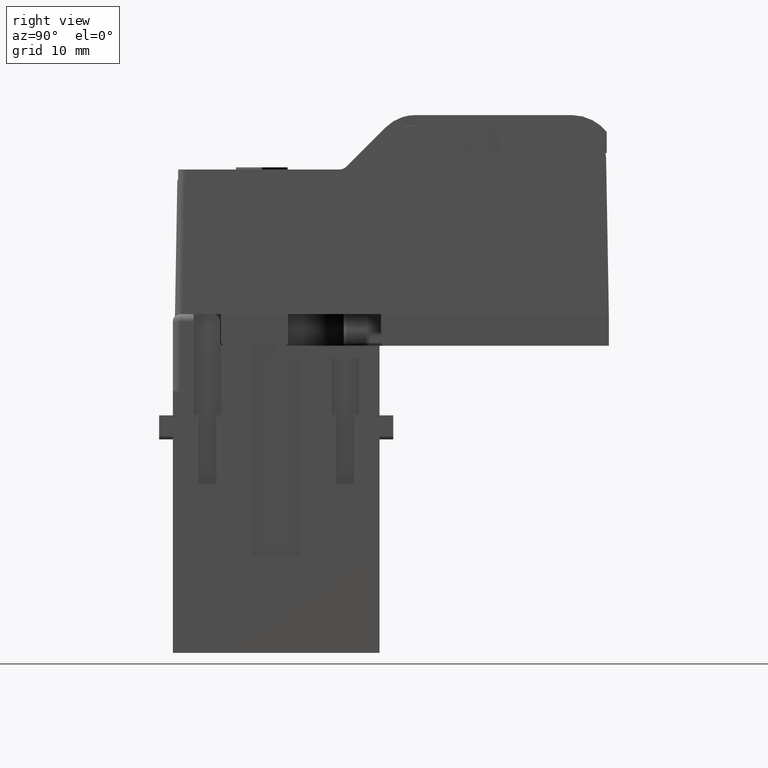
[diagram: clean part render]
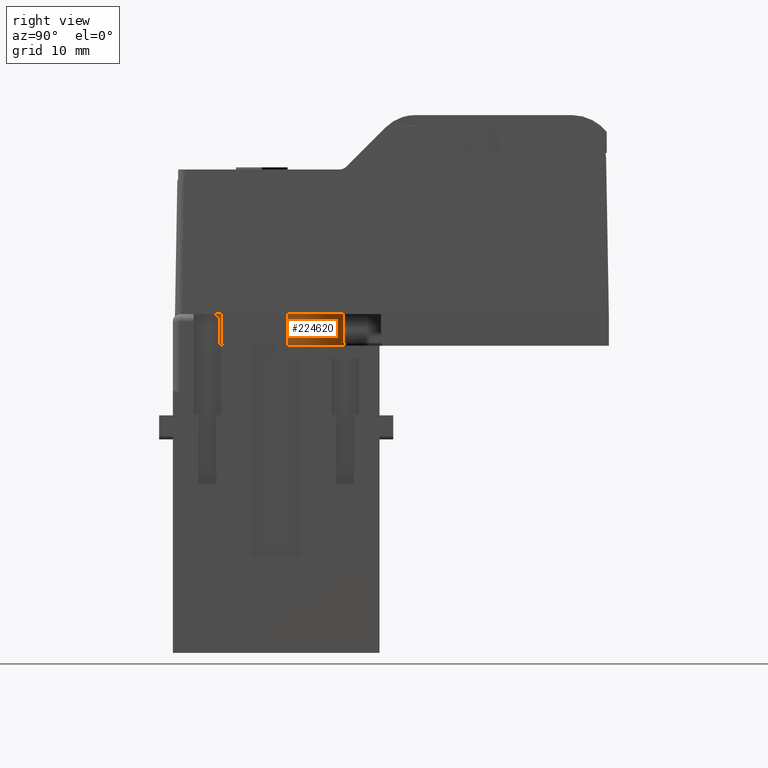
[diagram: same view with one face highlighted and labeled with its STEP entity id]
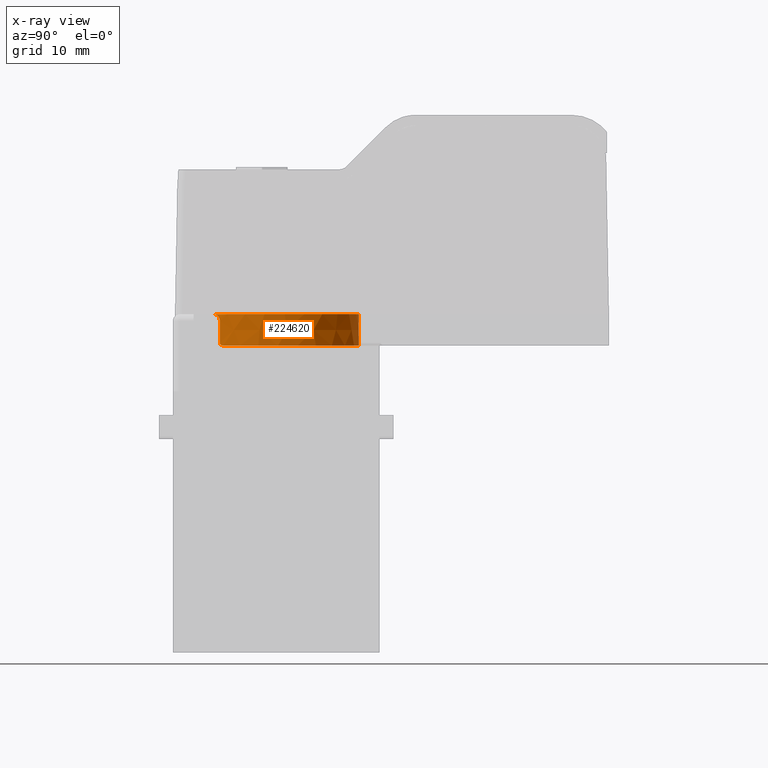
[diagram: x-ray of the same camera — body ghosted, the highlighted face saturated]
A machine part, right view. The second image highlights one B-rep face of the part: STEP entity #224620.
The next image is the same camera in x-ray: the body ghosted, the highlighted face saturated — about 0% of this face is hidden behind the body in this view.
In plain terms, the highlighted conical surface has half-angle 1 deg.
Its self-contained STEP definition (entity closure, byte-faithful):
#222530=CARTESIAN_POINT('',(55.5411914523025,91.9571830000001,
-26.1999999999934));
#222540=DIRECTION('',(1.,-4.90807124289031E-32,4.42079756411822E-16));
#222550=DIRECTION('',(-4.42079756411822E-16,-1.11022302462516E-16,1.));
#222560=AXIS2_PLACEMENT_3D('',#222530,#222540,#222550);
#222570=CYLINDRICAL_SURFACE('',#222560,1.);
#222580=CARTESIAN_POINT('',(41.3477350000005,92.9571830000002,
-16.999999999995));
#222590=DIRECTION('',(0.,-1.,-1.13690221213854E-16));
#222600=DIRECTION('',(1.,5.60519385729927E-45,-5.91645678915706E-31));
#222610=AXIS2_PLACEMENT_3D('',#222580,#222590,#222600);
#222620=CONICAL_SURFACE('',#222610,12.,0.0174532925199433);
#222630=CARTESIAN_POINT('',(33.6431908862954,92.9571830000001,
-26.1999999999935));
#222640=CARTESIAN_POINT('',(33.5171546391474,92.9571830000001,
-26.0944508884632));
#222650=CARTESIAN_POINT('',(33.3939920383722,92.9407539313874,
-25.9872270187438));
#222660=CARTESIAN_POINT('',(33.2756491555754,92.9047713088025,
-25.8805060297509));
#222670=CARTESIAN_POINT('',(33.1569557332568,92.8686821032865,
-25.7734689260618));
#222680=CARTESIAN_POINT('',(33.0426855926888,92.8123907719029,
-25.6664246530764));
#222690=CARTESIAN_POINT('',(32.9405131966234,92.7322579198354,
-25.5681306553957));
#222700=CARTESIAN_POINT('',(32.8379980066631,92.6518562177308,
-25.4695068760557));
#222710=CARTESIAN_POINT('',(32.7456762077353,92.5453503313714,
-25.377731415129));
#222720=CARTESIAN_POINT('',(32.6775616014506,92.4131427727067,
-25.3099996147831));
#222730=CARTESIAN_POINT('',(32.6084393238002,92.2789793667066,
-25.2412658062119));
#222740=CARTESIAN_POINT('',(32.5664968427384,92.1218863056987,
-25.1999999999927));
#222750=CARTESIAN_POINT('',(32.562564185633,91.9571830000002,
-25.1999999999927));
#222760=B_SPLINE_CURVE_WITH_KNOTS('',3,(#222630,#222640,#222650,#222660,
#222670,#222680,#222690,#222700,#222710,#222720,#222730,#222740,#222750)
,.UNSPECIFIED.,.F.,.F.,(4,3,3,3,4),(0.,0.490841378695767,
0.982153690890786,1.47334973900886,1.96389205208649),.UNSPECIFIED.);
#222770=SURFACE_CURVE('',#222760,(#222570,#222620),.CURVE_3D.);
#222780=CARTESIAN_POINT('',(33.6431908862627,92.9571830000001,
-26.1999999999661));
#222790=VERTEX_POINT('',#222780);
#222800=CARTESIAN_POINT('',(32.5625641856335,91.9571830000002,
-25.1999999999931));
#222810=VERTEX_POINT('',#222800);
#222820=EDGE_CURVE('',#222790,#222810,#222770,.T.);
#223170=CARTESIAN_POINT('',(44.1977350000005,91.9571830000001,
-29.4413103911484));
#223180=DIRECTION('',(5.91645678915803E-31,-1.11022302462519E-16,1.));
#223190=DIRECTION('',(-5.60519385729927E-45,1.,1.11022302462519E-16));
#223200=AXIS2_PLACEMENT_3D('',#223170,#223180,#223190);
#223210=CYLINDRICAL_SURFACE('',#223200,1.);
#223220=CARTESIAN_POINT('',(43.1977350000005,91.9571830000001,
-5.12579576402323));
#223230=CARTESIAN_POINT('',(43.1977350000005,92.0890962811146,
-5.12812609701533));
#223240=CARTESIAN_POINT('',(43.2239503970781,92.2203446708241,
-5.13444639075197));
#223250=CARTESIAN_POINT('',(43.2749326215229,92.3424566303935,
-5.14489364909814));
#223260=CARTESIAN_POINT('',(43.3262024544786,92.4652574661199,
-5.15539984407268));
#223270=CARTESIAN_POINT('',(43.4012009381276,92.5758470359365,
-5.16986416622654));
#223280=CARTESIAN_POINT('',(43.4944699475402,92.6681107501888,
-5.18845255174746));
#223290=CARTESIAN_POINT('',(43.588438032523,92.7610660050617,
-5.2071802620697));
#223300=CARTESIAN_POINT('',(43.6992375672041,92.8337355676913,
-5.22981429843383));
#223310=CARTESIAN_POINT('',(43.8193739171043,92.8828410853371,
-5.25597402173387));
#223320=CARTESIAN_POINT('',(43.9404091487472,92.9323140192837,
-5.28232947678113));
#223330=CARTESIAN_POINT('',(44.0693173936153,92.9571830000005,
-5.31195199521371));
#223340=CARTESIAN_POINT('',(44.1977350000035,92.9571830000001,
-5.34334953770594));
#223350=B_SPLINE_CURVE_WITH_KNOTS('',3,(#223220,#223230,#223240,#223250,
#223260,#223270,#223280,#223290,#223300,#223310,#223320,#223330,#223340)
,.UNSPECIFIED.,.F.,.F.,(4,3,3,3,4),(0.,0.396026103560013,
0.793793603685412,1.19157719453419,1.58934710492143),.UNSPECIFIED.);
#223360=SURFACE_CURVE('',#223350,(#223210,#222620),.CURVE_3D.);
#223370=CARTESIAN_POINT('',(43.1977350000005,91.9571830000001,
-5.12579576402323));
#223380=VERTEX_POINT('',#223370);
#223390=CARTESIAN_POINT('',(44.1977350001208,92.9571830000001,
-5.34334953773462));
#223400=VERTEX_POINT('',#223390);
#223410=EDGE_CURVE('',#223380,#223400,#223360,.T.);
#223420=ORIENTED_EDGE('',*,*,#223410,.T.);
#223430=CARTESIAN_POINT('',(43.1977350000005,85.757183,-1.99999999999469
));
#223440=DIRECTION('',(-1.,-7.07217818713932E-45,5.91645678915803E-31));
#223450=DIRECTION('',(-5.91645678915803E-31,1.11022302462516E-16,-1.));
#223460=AXIS2_PLACEMENT_3D('',#223430,#223440,#223450);
#223470=PLANE('',#223460);
#223480=CARTESIAN_POINT('',(43.1977350000005,88.8571829999999,
-5.07103524827281));
#223490=CARTESIAN_POINT('',(43.1977350000005,88.9863496688447,
-5.07331681291308));
#223500=CARTESIAN_POINT('',(43.1977350000005,89.1155163374192,
-5.07559839292199));
#223510=CARTESIAN_POINT('',(43.1977350000005,89.2446830057217,
-5.07787998832599));
#223520=CARTESIAN_POINT('',(43.1977350000005,89.3738496740234,
-5.08016158372998));
#223530=CARTESIAN_POINT('',(43.1977350000005,89.5030163420553,
-5.0824431945291));
#223540=CARTESIAN_POINT('',(43.1977350000005,89.6321830098142,
-5.08472482074986));
#223550=CARTESIAN_POINT('',(43.1977350000005,89.8905163453322,
-5.08928807319138));
#223560=CARTESIAN_POINT('',(43.1977350000005,90.1488496797623,
-5.09385138731945));
#223570=CARTESIAN_POINT('',(43.1977350000005,90.4071830131007,
-5.09841476334717));
#223580=CARTESIAN_POINT('',(43.1977350000005,90.665516346439,
-5.1029781393749));
#223590=CARTESIAN_POINT('',(43.1977350000005,90.9238496786857,
-5.10754157730229));
#223600=CARTESIAN_POINT('',(43.1977350000005,91.1821830098369,
-5.11210507734343));
#223610=CARTESIAN_POINT('',(43.1977350000005,91.3113496754124,
-5.114386827364));
#223620=CARTESIAN_POINT('',(43.1977350000005,91.4405163407149,
-5.11666859291304));
#223630=CARTESIAN_POINT('',(43.1977350000005,91.5696830057415,
-5.11895037401737));
#223640=CARTESIAN_POINT('',(43.1977350000005,91.6988496707689,
-5.12123215512171));
#223650=CARTESIAN_POINT('',(43.1977350000005,91.8280163355224,
-5.12351395178136));
#223660=CARTESIAN_POINT('',(43.1977350000005,91.9571830000002,
-5.12579576402323));
#223670=B_SPLINE_CURVE_WITH_KNOTS('',3,(#223480,#223490,#223500,#223510,
#223520,#223530,#223540,#223550,#223560,#223570,#223580,#223590,#223600,
#223610,#223620,#223630,#223640,#223650,#223660),.UNSPECIFIED.,.F.,.F.,(
4,3,3,3,3,3,4),(0.,0.387560453220878,0.775120906444084,1.55024181289829,
2.32536271936285,2.71292317259902,3.10048362583804),.UNSPECIFIED.);
#223680=SURFACE_CURVE('',#223670,(#223470,#222620),.CURVE_3D.);
#223690=CARTESIAN_POINT('',(43.1977350000005,88.857183,-5.07103524827281
));
#223700=VERTEX_POINT('',#223690);
#223710=EDGE_CURVE('',#223700,#223380,#223680,.T.);
#223720=ORIENTED_EDGE('',*,*,#223710,.T.);
#223730=CARTESIAN_POINT('',(42.6977350000005,88.857183,-4.55868960884607
));
#223740=DIRECTION('',(-7.88860905221012E-31,2.62869779714346E-15,-1.));
#223750=DIRECTION('',(0.,1.,2.62869779714346E-15));
#223760=AXIS2_PLACEMENT_3D('',#223730,#223740,#223750);
#223770=CYLINDRICAL_SURFACE('',#223760,0.5);
#223780=CARTESIAN_POINT('',(43.1977350000005,88.8571830000001,
-5.07103524827282));
#223790=CARTESIAN_POINT('',(43.1977350000005,88.7916419802495,
-5.0698775496615));
#223800=CARTESIAN_POINT('',(43.1847952476386,88.7264328245887,
-5.06669900792895));
#223810=CARTESIAN_POINT('',(43.1596137910649,88.6656941429746,
-5.06180483963988));
#223820=CARTESIAN_POINT('',(43.1342922490451,88.6046175696549,
-5.05688344489763));
#223830=CARTESIAN_POINT('',(43.0971869964825,88.5494321415941,
-5.05035423785053));
#223840=CARTESIAN_POINT('',(43.050919270769,88.5032608745519,
-5.0429497203976));
#223850=CARTESIAN_POINT('',(43.0042997921022,88.4567385878887,
-5.03548890968966));
#223860=CARTESIAN_POINT('',(42.9490449384446,88.4200339761469,
-5.02726055679588));
#223870=CARTESIAN_POINT('',(42.8887558625276,88.3951104623185,
-5.01906738282146));
#223880=CARTESIAN_POINT('',(42.827998557216,88.3699933823819,
-5.01081057733782));
#223890=CARTESIAN_POINT('',(42.7627324635754,88.357183,-5.00268586484208
));
#223900=CARTESIAN_POINT('',(42.6977350000005,88.357183,-4.99537646646061
));
#223910=B_SPLINE_CURVE_WITH_KNOTS('',3,(#223780,#223790,#223800,#223810,
#223820,#223830,#223840,#223850,#223860,#223870,#223880,#223890,#223900)
,.UNSPECIFIED.,.F.,.F.,(4,3,3,3,4),(0.,0.196751594011008,
0.394377656367602,0.59200281718069,0.789433472170161),.UNSPECIFIED.);
#223920=SURFACE_CURVE('',#223910,(#223770,#222620),.CURVE_3D.);
#223930=CARTESIAN_POINT('',(42.6977349997238,88.357183,-4.9953764664295)
);
#223940=VERTEX_POINT('',#223930);
#223950=EDGE_CURVE('',#223700,#223940,#223920,.T.);
#223960=ORIENTED_EDGE('',*,*,#223950,.F.);
#223970=CARTESIAN_POINT('',(41.3477350000005,88.357183,-16.999999999995)
);
#223980=DIRECTION('',(5.60519385729927E-45,-1.,-1.11022302462516E-16));
#223990=DIRECTION('',(1.,5.67087972281449E-45,-5.91645678915706E-31));
#224000=AXIS2_PLACEMENT_3D('',#223970,#223980,#223990);
#224010=CIRCLE('',#224000,12.0802932986698);
#224020=CARTESIAN_POINT('',(32.0394867124917,88.357183,-24.6999999999935
));
#224030=VERTEX_POINT('',#224020);
#224040=EDGE_CURVE('',#223940,#224030,#224010,.T.);
#224050=ORIENTED_EDGE('',*,*,#224040,.F.);
#224060=CARTESIAN_POINT('',(27.154278547698,88.857183,-24.6999999999935)
);
#224070=DIRECTION('',(-1.,6.16074488056511E-31,-4.42079756411822E-16));
#224080=DIRECTION('',(4.42079756411822E-16,1.11022302462516E-16,-1.));
#224090=AXIS2_PLACEMENT_3D('',#224060,#224070,#224080);
#224100=CYLINDRICAL_SURFACE('',#224090,0.5);
#224110=CARTESIAN_POINT('',(32.0394867124917,88.357183,-24.6999999999935
));
#224120=CARTESIAN_POINT('',(32.0881920431406,88.357183,-24.7588780922799
));
#224130=CARTESIAN_POINT('',(32.1380830150501,88.3675631979921,
-24.8177330682549));
#224140=CARTESIAN_POINT('',(32.1868372586967,88.3883980058762,
-24.8738983303028));
#224150=CARTESIAN_POINT('',(32.2355262955467,88.4092049480613,
-24.9299884736217));
#224160=CARTESIAN_POINT('',(32.2826529815909,88.4400361170925,
-24.9829197875514));
#224170=CARTESIAN_POINT('',(32.3261548508973,88.4821519141487,
-25.0306836624947));
#224180=CARTESIAN_POINT('',(32.3696098061372,88.5242222919313,
-25.0783960270628));
#224190=CARTESIAN_POINT('',(32.4088923026246,88.5771687685018,
-25.120322790195));
#224200=CARTESIAN_POINT('',(32.4385450258913,88.6414631802044,
-25.1510709027875));
#224210=CARTESIAN_POINT('',(32.4683304060774,88.7060452248003,
-25.1819565727254));
#224220=CARTESIAN_POINT('',(32.4868517928976,88.7799493777495,
-25.1999999999934));
#224230=CARTESIAN_POINT('',(32.4886887732413,88.857183,-25.1999999999934
));
#224240=B_SPLINE_CURVE_WITH_KNOTS('',3,(#224110,#224120,#224130,#224140,
#224150,#224160,#224170,#224180,#224190,#224200,#224210,#224220,#224230)
,.UNSPECIFIED.,.F.,.F.,(4,3,3,3,4),(0.,0.230781078689629,
0.461416754560196,0.692146114662934,0.922059122858208),.UNSPECIFIED.);
#224250=SURFACE_CURVE('',#224240,(#224100,#222620),.CURVE_3D.);
#224260=CARTESIAN_POINT('',(32.4886887732414,88.857183,-25.1999999999935
));
#224270=VERTEX_POINT('',#224260);
#224280=EDGE_CURVE('',#224030,#224270,#224250,.T.);
#224290=ORIENTED_EDGE('',*,*,#224280,.F.);
#224300=CARTESIAN_POINT('',(32.0707473423617,88.3571830000001,
-25.1999999999935));
#224310=DIRECTION('',(-4.42079756411822E-16,-1.03244494932799E-14,1.));
#224320=DIRECTION('',(-1.,4.03650364090779E-30,-4.42079756411822E-16));
#224330=AXIS2_PLACEMENT_3D('',#224300,#224310,#224320);
#224340=PLANE('',#224330);
#224350=CARTESIAN_POINT('',(32.5625641856342,91.9571830000001,
-25.1999999999935));
#224360=CARTESIAN_POINT('',(32.5563959104631,91.6988499483464,
-25.1999999999935));
#224370=CARTESIAN_POINT('',(32.5502306581945,91.4405168252668,
-25.1999999999935));
#224380=CARTESIAN_POINT('',(32.5440684098279,91.1821836315171,
-25.1999999999935));
#224390=CARTESIAN_POINT('',(32.5379061614613,90.9238504377675,
-25.1999999999935));
#224400=CARTESIAN_POINT('',(32.531746916997,90.6655171733482,
-25.1999999999935));
#224410=CARTESIAN_POINT('',(32.5255906576117,90.407183839012,
-25.1999999999935));
#224420=CARTESIAN_POINT('',(32.5194343982265,90.1488505046759,
-25.1999999999935));
#224430=CARTESIAN_POINT('',(32.5132811239206,89.8905171004233,
-25.1999999999935));
#224440=CARTESIAN_POINT('',(32.507130816046,89.6321836270047,
-25.1999999999935));
#224450=CARTESIAN_POINT('',(32.5009805081714,89.3738501535863,
-25.1999999999935));
#224460=CARTESIAN_POINT('',(32.4948331667282,89.1155166110019,
-25.1999999999935));
#224470=CARTESIAN_POINT('',(32.4886887732414,88.857183,-25.1999999999935
));
#224480=B_SPLINE_CURVE_WITH_KNOTS('',3,(#224350,#224360,#224370,#224380,
#224390,#224400,#224410,#224420,#224430,#224440,#224450,#224460,#224470)
,.UNSPECIFIED.,.F.,.F.,(4,3,3,3,4),(0.,0.775219989953603,
1.55044030875022,2.32566059782971,3.10088095779917),.UNSPECIFIED.);
#224490=SURFACE_CURVE('',#224480,(#224340,#222620),.CURVE_3D.);
#224500=EDGE_CURVE('',#222810,#224270,#224490,.T.);
#224510=ORIENTED_EDGE('',*,*,#224500,.T.);
#224520=ORIENTED_EDGE('',*,*,#222820,.T.);
#224530=CARTESIAN_POINT('',(41.3477350000005,92.9571830000001,
-16.999999999995));
#224540=DIRECTION('',(-5.60519385729927E-45,1.,1.11022302462516E-16));
#224550=DIRECTION('',(1.,5.60519385729927E-45,-5.91645678915706E-31));
#224560=AXIS2_PLACEMENT_3D('',#224530,#224540,#224550);
#224570=CIRCLE('',#224560,12.);
#224580=EDGE_CURVE('',#222790,#223400,#224570,.T.);
#224590=ORIENTED_EDGE('',*,*,#224580,.F.);
#224600=EDGE_LOOP('',(#224590,#224520,#224510,#224290,#224050,#223960,
#223720,#223420));
#224610=FACE_OUTER_BOUND('',#224600,.T.);
#224620=ADVANCED_FACE('',(#224610),#222620,.T.);